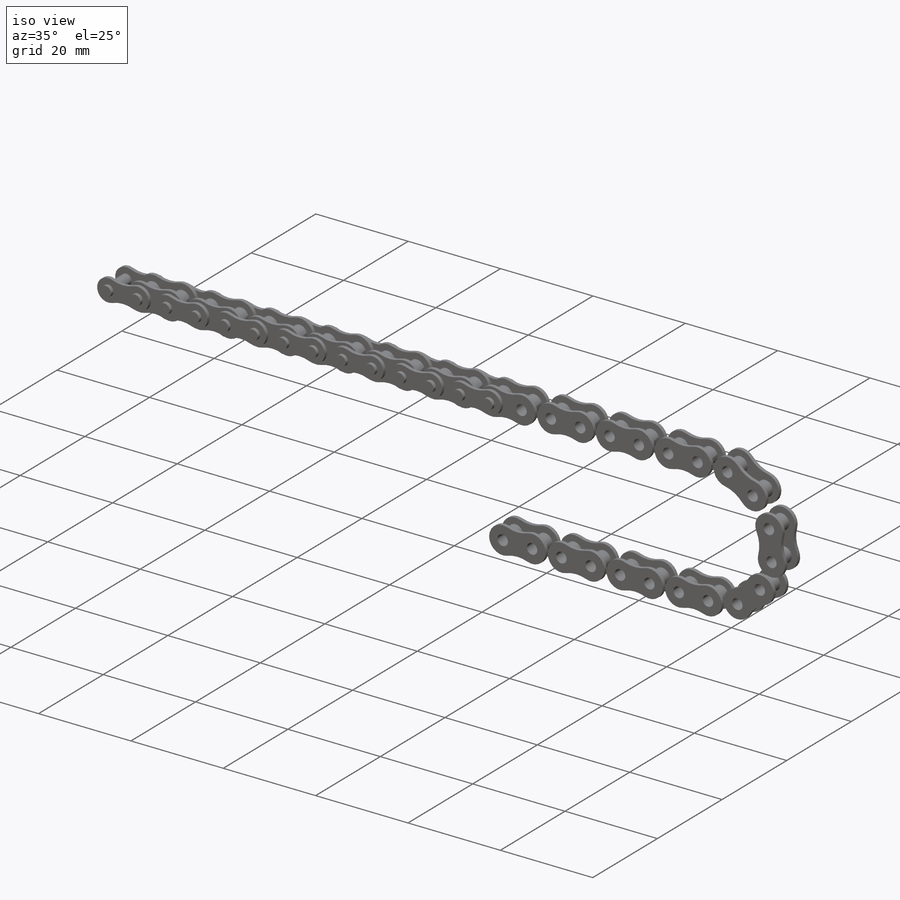
[diagram: iso view]
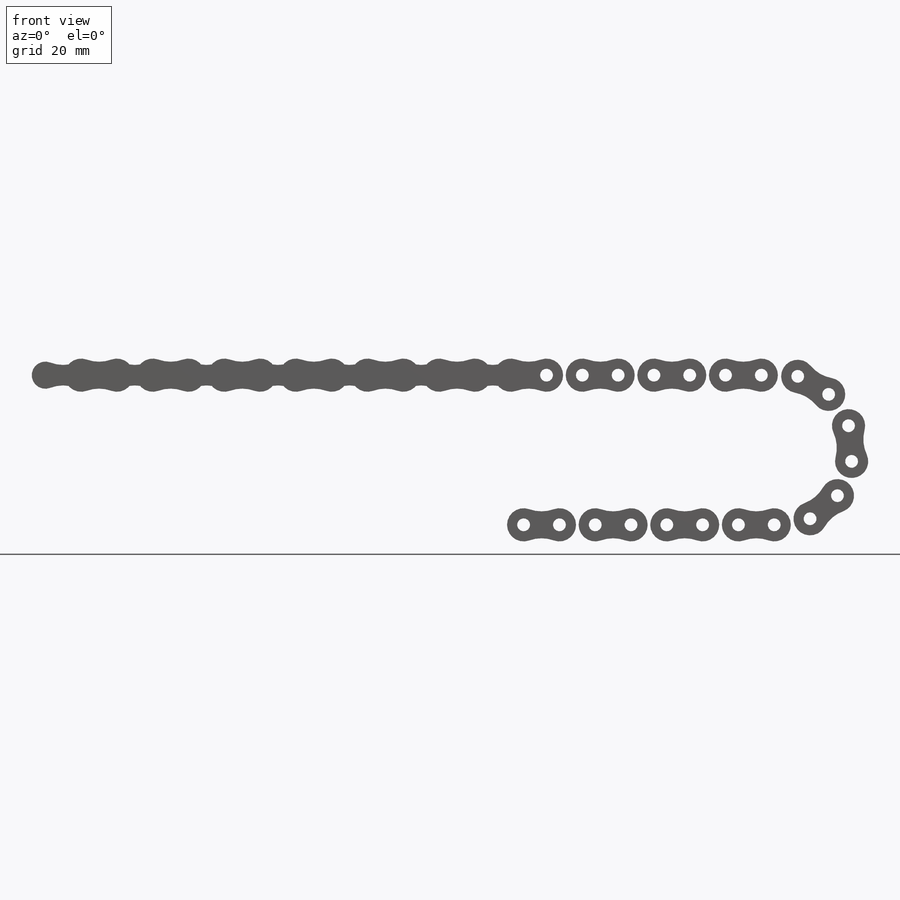
[diagram: front view]
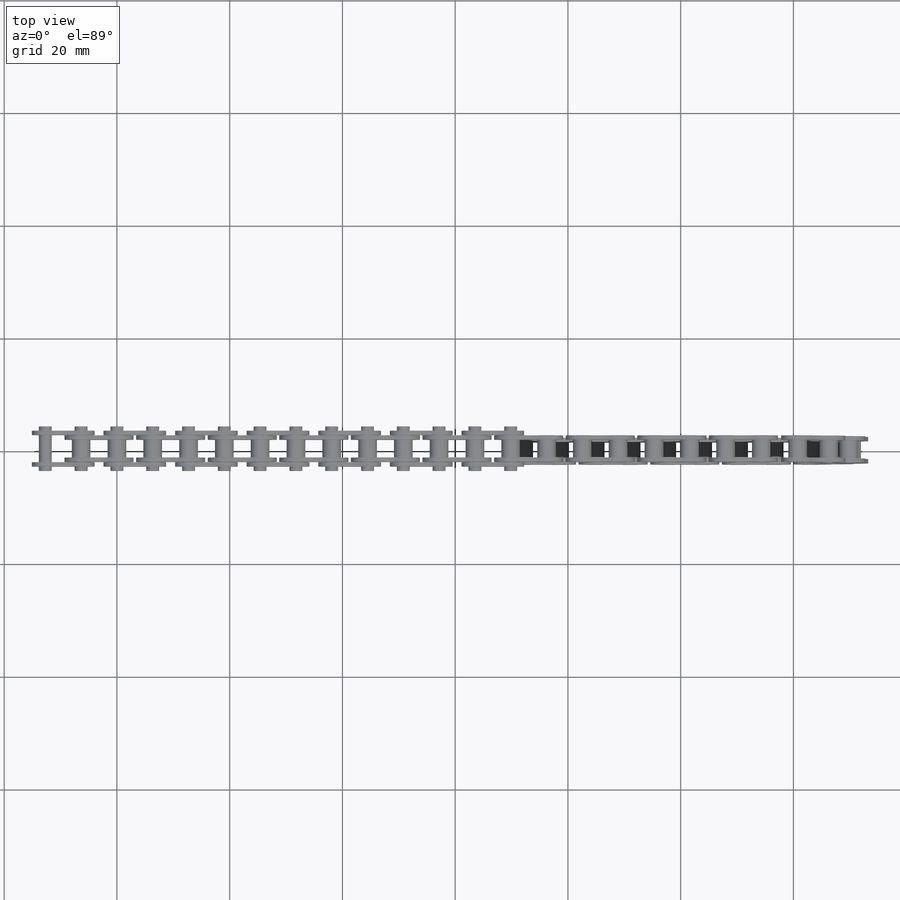
[diagram: top view]
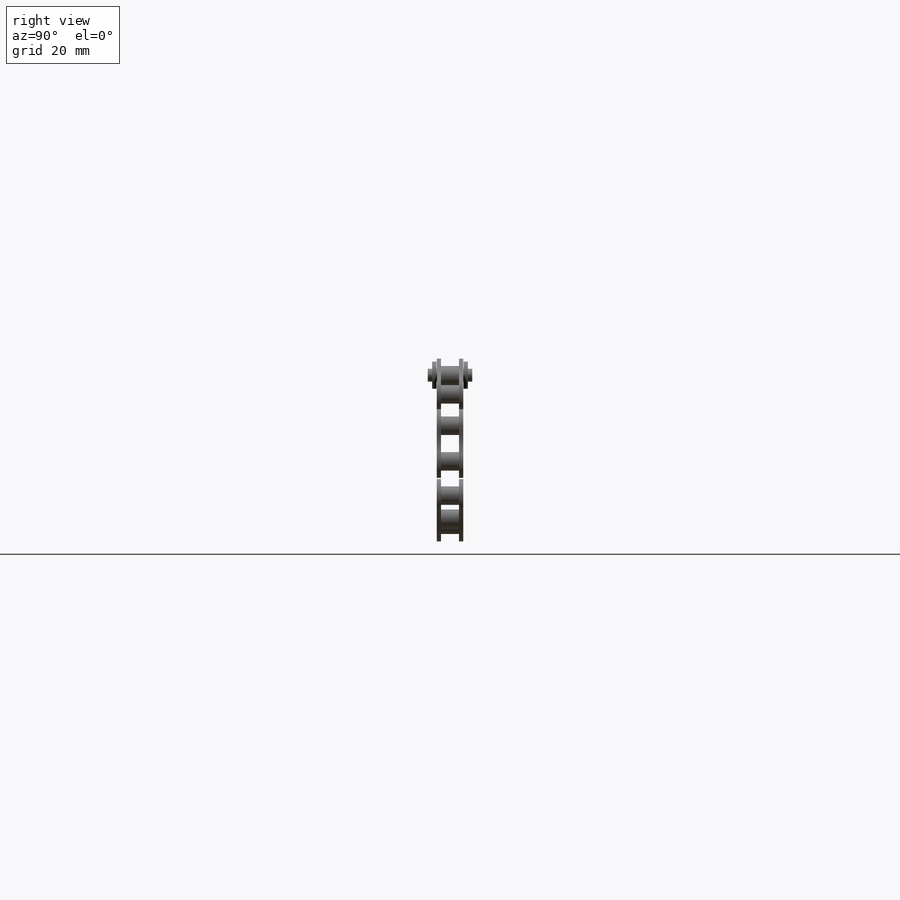
[diagram: right view]
SOLIDWORKS PART (.sldprt)
format: sldprt  version: not decoded by parser v0  size: 1,677,824 bytes
history: native  units: mm
features: sketch x6, extrude x4, mirror x3, material x1 (+13 scaffold rows collapsed)
feature tree (27):
  scaffold x13  (default folders/planes/origin — collapsed)
  material  "Material <not specified>"
  sketch  "Sketch1"  dims[D2=5.8928mm D3=2.286mm D4=12.7mm D1=6.35mm]
  extrude  "inner link s1"  Depth=0.762mm
  mirror  "inner link s2"
  sketch  "Sketch3"  dims[D1=3.302mm]
  extrude  "tubes"  [1 undecoded]
  sketch  "Sketch4"  dims[D2=4.826mm D3=12.7mm D1=6.35mm]
  mirror  "outer link 1"
  extrude  "outer link 2"  [1 undecoded]
  sketch  "Sketch5"
  mirror  "pins"
  sketch  "Links1"  dims[c1.D2=13.2715mm c1.A=160.0mm c1.D3=160.0mm c1.D1=120.0mm c2.D3=60.0mm]
  sketch  "Links2"  dims[D1=17.0 D3=12.7mm D2=1.0 D4=50.0mm]
  extrude  "outer links pat"  Depth=17
decode coverage: 7 of 13 modeling features carry decoded parameters
note: 2 parameter values undecoded
note: suppression state not decoded; provenance and decode notes live in map.json
